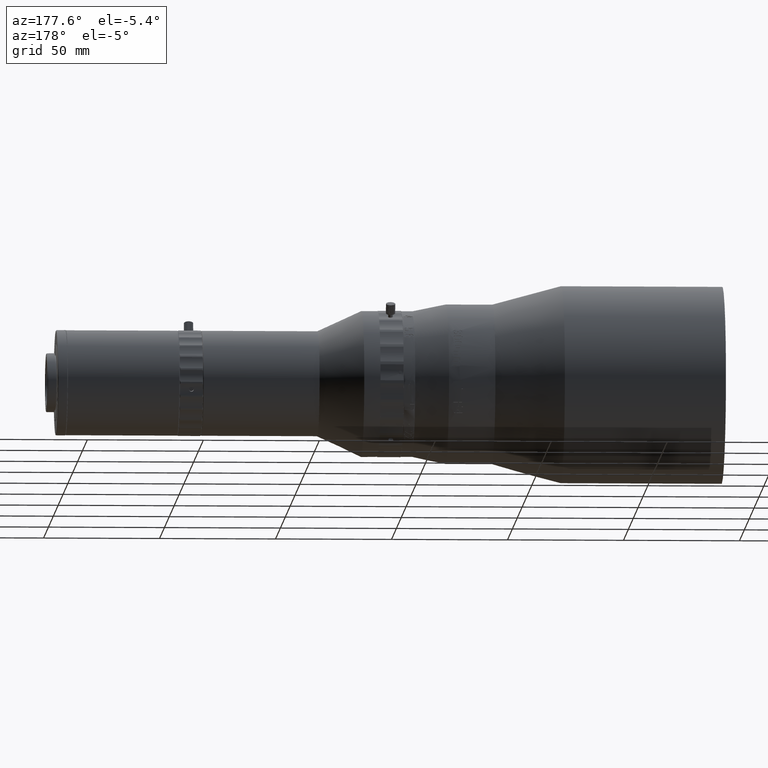
[diagram: clean part render]
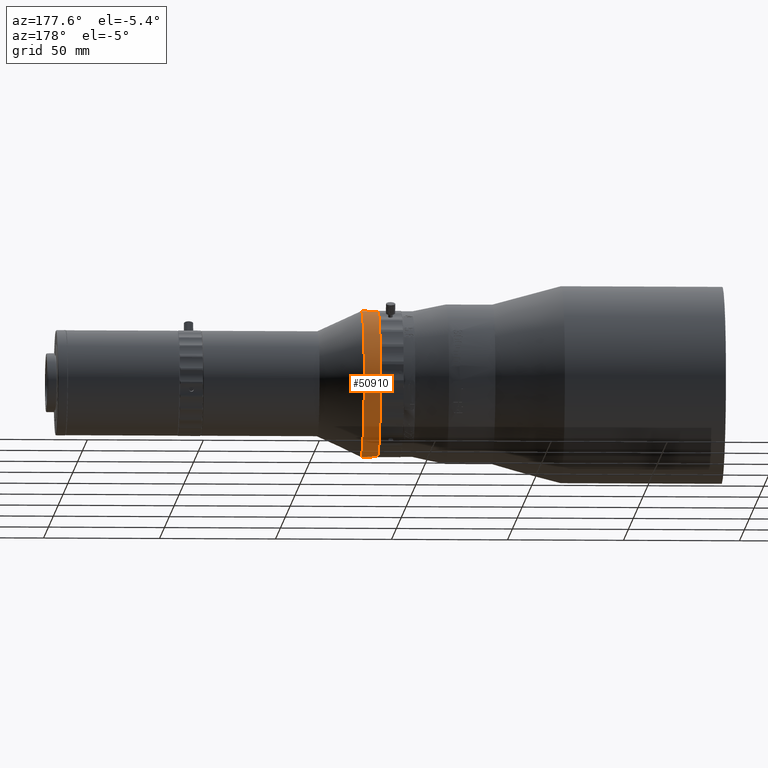
[diagram: same view with one face highlighted and labeled with its STEP entity id]
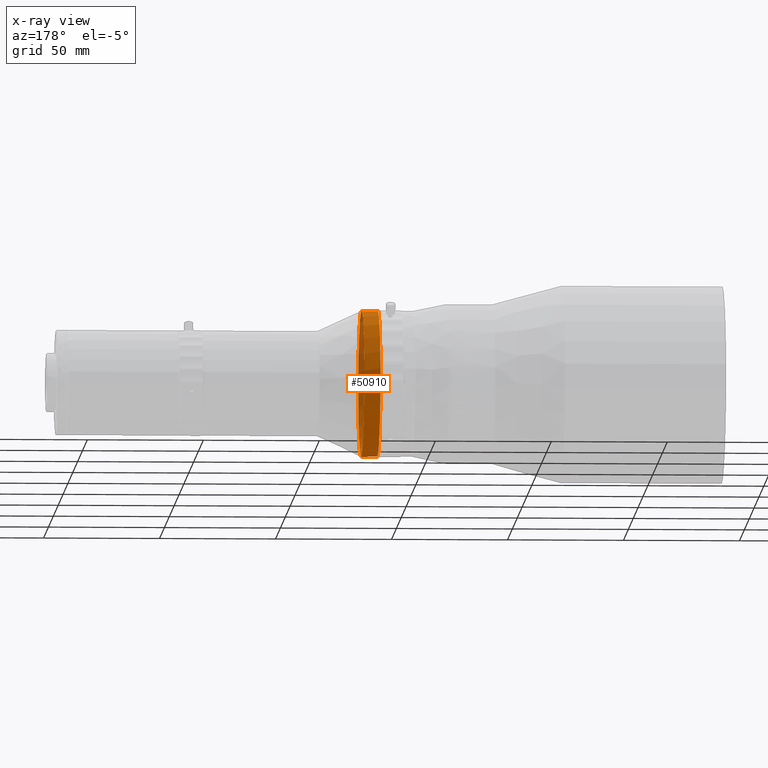
[diagram: x-ray of the same camera — body ghosted, the highlighted face saturated]
A machine part, auxiliary view. The second image highlights one B-rep face of the part: STEP entity #50910.
The next image is the same camera in x-ray: the body ghosted, the highlighted face saturated — about 21% of this face is hidden behind the body in this view.
In plain terms, the highlighted cylindrical surface (bore or boss wall) has radius 31.5 mm, axis along (-1, -0, -0).
Its self-contained STEP definition (entity closure, byte-faithful):
#1573 = ORIENTED_EDGE ( 'NONE', *, *, #50464, .T. ) ;
#2542 = DIRECTION ( 'NONE',  ( -1.000000000000000000, -0.000000000000000000, -0.000000000000000000 ) ) ;
#6313 = ORIENTED_EDGE ( 'NONE', *, *, #52181, .F. ) ;
#10341 = CIRCLE ( 'NONE', #19227, 31.49999918043611302 ) ;
#10426 = AXIS2_PLACEMENT_3D ( 'NONE', #49170, #36666, #11135 ) ;
#11135 = DIRECTION ( 'NONE',  ( 0.000000000000000000, 0.000000000000000000, 1.000000000000000000 ) ) ;
#13651 = DIRECTION ( 'NONE',  ( 0.000000000000000000, 0.000000000000000000, 1.000000000000000000 ) ) ;
#17350 = EDGE_LOOP ( 'NONE', ( #6313 ) ) ;
#18368 = FACE_OUTER_BOUND ( 'NONE', #43284, .T. ) ;
#19227 = AXIS2_PLACEMENT_3D ( 'NONE', #35297, #26155, #13651 ) ;
#20985 = VERTEX_POINT ( 'NONE', #38178 ) ;
#26155 = DIRECTION ( 'NONE',  ( 1.000000000000000000, 0.000000000000000000, 0.000000000000000000 ) ) ;
#31969 = DIRECTION ( 'NONE',  ( 0.000000000000000000, 0.000000000000000000, 1.000000000000000000 ) ) ;
#33496 = CIRCLE ( 'NONE', #10426, 31.49999918043611302 ) ;
#35297 = CARTESIAN_POINT ( 'NONE',  ( 64.86267930836045537, 10.19269740323192686, 154.4499999608852647 ) ) ;
#35306 = FACE_OUTER_BOUND ( 'NONE', #17350, .T. ) ;
#36666 = DIRECTION ( 'NONE',  ( 1.000000000000000000, 0.000000000000000000, 0.000000000000000000 ) ) ;
#38178 = CARTESIAN_POINT ( 'NONE',  ( 64.86267930836045537, 10.19269740323192686, 185.9499991413213706 ) ) ;
#39626 = AXIS2_PLACEMENT_3D ( 'NONE', #52495, #2542, #31969 ) ;
#39792 = CARTESIAN_POINT ( 'NONE',  ( 71.86267930836100959, 10.19269740323192686, 185.9499991413213706 ) ) ;
#43284 = EDGE_LOOP ( 'NONE', ( #1573 ) ) ;
#48120 = VERTEX_POINT ( 'NONE', #39792 ) ;
#49170 = CARTESIAN_POINT ( 'NONE',  ( 71.86267930836100959, 10.19269740323192686, 154.4499999608852647 ) ) ;
#50464 = EDGE_CURVE ( 'NONE', #20985, #20985, #10341, .T. ) ;
#50910 = ADVANCED_FACE ( 'NONE', ( #18368, #35306 ), #52236, .T. ) ;
#52181 = EDGE_CURVE ( 'NONE', #48120, #48120, #33496, .T. ) ;
#52236 = CYLINDRICAL_SURFACE ( 'NONE', #39626, 31.49999918043611302 ) ;
#52495 = CARTESIAN_POINT ( 'NONE',  ( 56.02819703053810230, 10.19269740323192686, 154.4499999608852647 ) ) ;